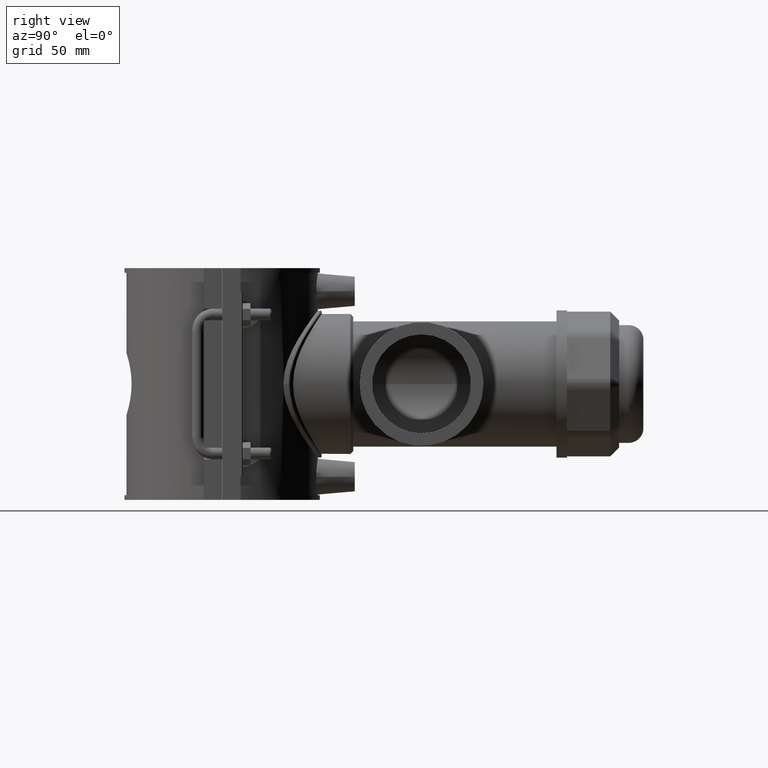
[diagram: clean part render]
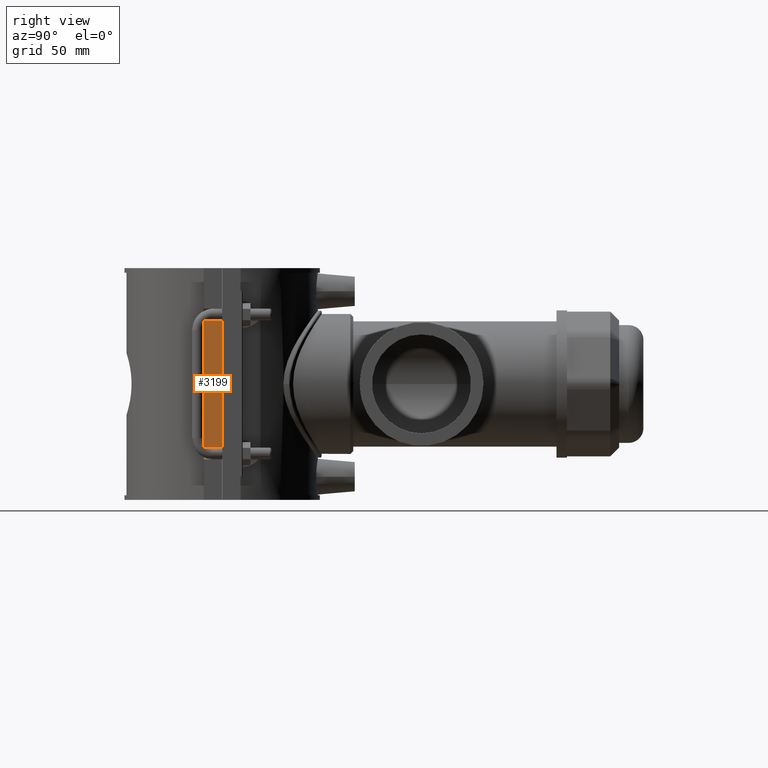
[diagram: same view with one face highlighted and labeled with its STEP entity id]
A machine part, right view. The second image highlights one B-rep face of the part: STEP entity #3199.
In plain terms, the highlighted planar face has unit normal (1, 0, 0).
Its self-contained STEP definition (entity closure, byte-faithful):
#290=LINE('',#6437,#569);
#299=LINE('',#6453,#578);
#301=LINE('',#6456,#580);
#309=LINE('',#6471,#588);
#569=VECTOR('',#4284,9.32499999999999);
#578=VECTOR('',#4299,9.32499999999999);
#580=VECTOR('',#4303,64.8);
#588=VECTOR('',#4317,64.8);
#930=FACE_OUTER_BOUND('',#1171,.T.);
#1171=EDGE_LOOP('',(#2850,#2851,#2852,#2853));
#1571=VERTEX_POINT('',#6434);
#1572=VERTEX_POINT('',#6436);
#1575=VERTEX_POINT('',#6450);
#1576=VERTEX_POINT('',#6452);
#1988=EDGE_CURVE('',#1572,#1571,#290,.T.);
#1997=EDGE_CURVE('',#1576,#1575,#299,.T.);
#1999=EDGE_CURVE('',#1575,#1572,#301,.T.);
#2007=EDGE_CURVE('',#1576,#1571,#309,.T.);
#2850=ORIENTED_EDGE('',*,*,#1988,.T.);
#2851=ORIENTED_EDGE('',*,*,#2007,.F.);
#2852=ORIENTED_EDGE('',*,*,#1997,.T.);
#2853=ORIENTED_EDGE('',*,*,#1999,.T.);
#3015=PLANE('',#3488);
#3199=ADVANCED_FACE('',(#930),#3015,.T.);
#3488=AXIS2_PLACEMENT_3D('',#6482,#4331,#4332);
#4284=DIRECTION('',(0.,-1.,0.));
#4299=DIRECTION('',(0.,1.,0.));
#4303=DIRECTION('',(0.,0.,1.));
#4317=DIRECTION('',(0.,0.,1.));
#4331=DIRECTION('center_axis',(1.,0.,0.));
#4332=DIRECTION('ref_axis',(0.,1.,0.));
#6434=CARTESIAN_POINT('',(58.5,-9.375,32.4));
#6436=CARTESIAN_POINT('',(58.5,-0.0500000000000078,32.4));
#6437=CARTESIAN_POINT('',(58.5,-9.375,32.4));
#6450=CARTESIAN_POINT('',(58.5,-0.0500000000000078,-32.4));
#6452=CARTESIAN_POINT('',(58.5,-9.375,-32.4));
#6453=CARTESIAN_POINT('',(58.5,-9.375,-32.4));
#6456=CARTESIAN_POINT('',(58.5,-0.0500000000000078,-29.5));
#6471=CARTESIAN_POINT('',(58.5,-9.375,0.));
#6482=CARTESIAN_POINT('Origin',(58.5,-9.375,0.));